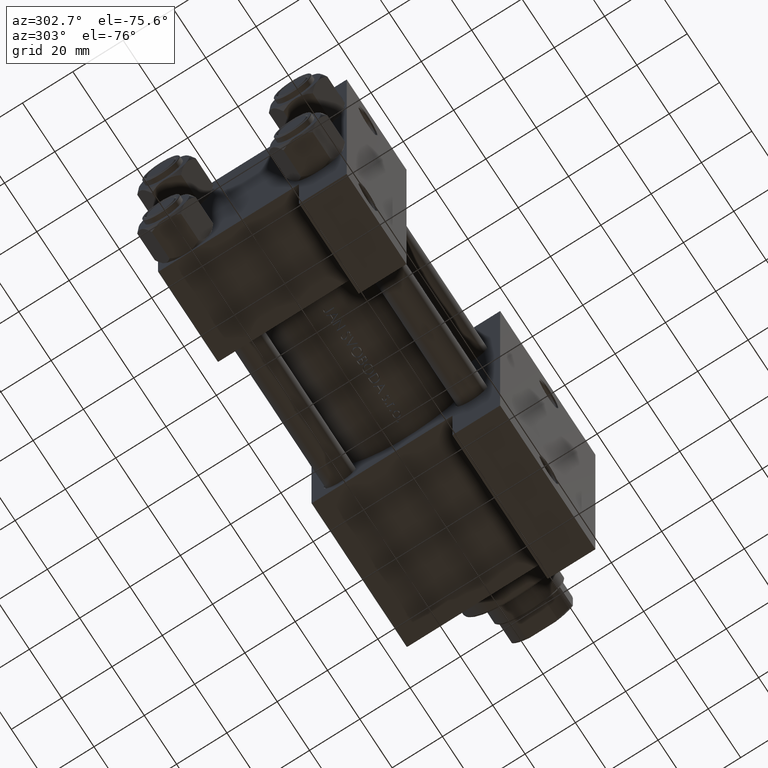
[diagram: clean part render]
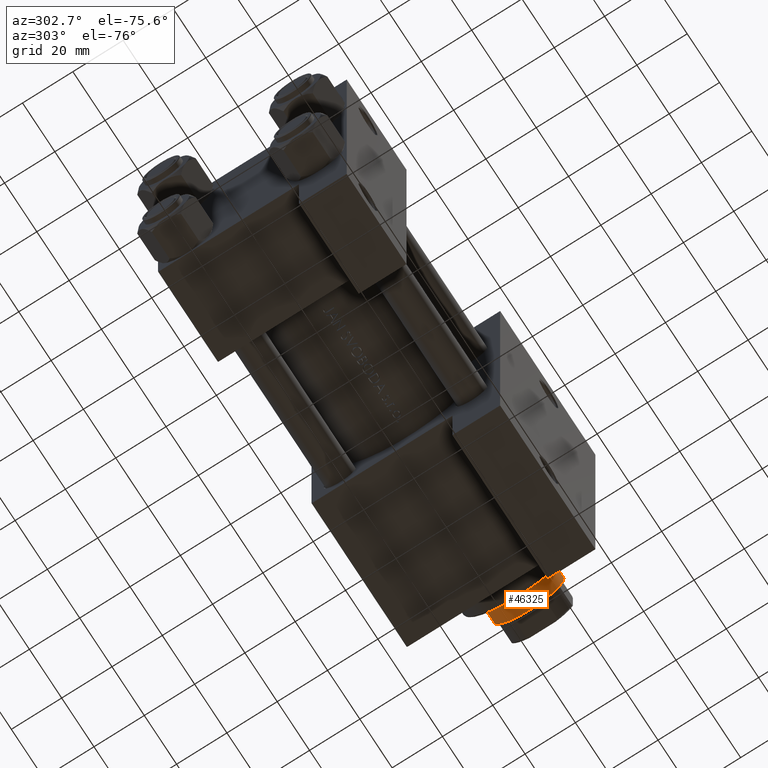
[diagram: same view with one face highlighted and labeled with its STEP entity id]
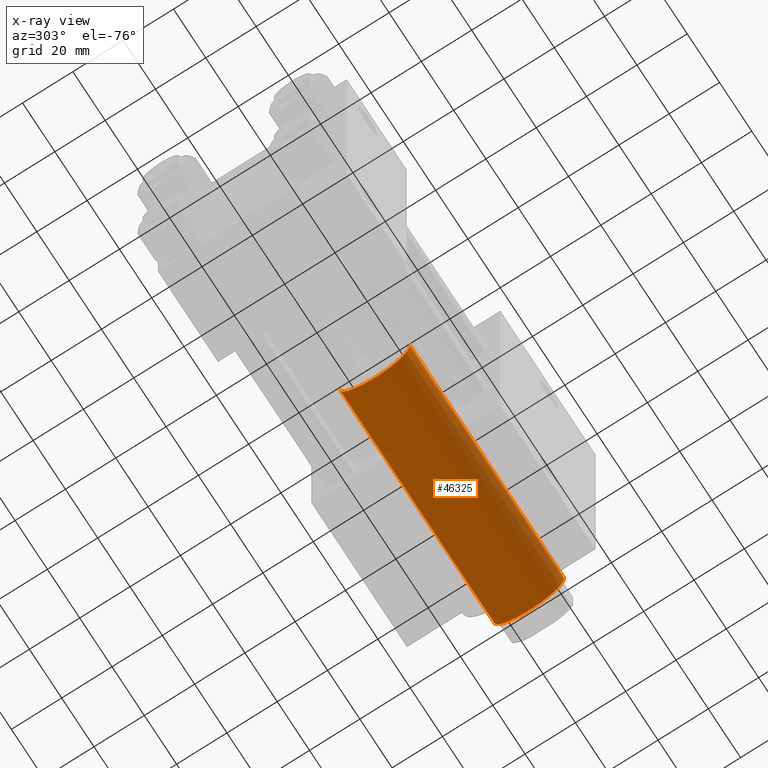
[diagram: x-ray of the same camera — body ghosted, the highlighted face saturated]
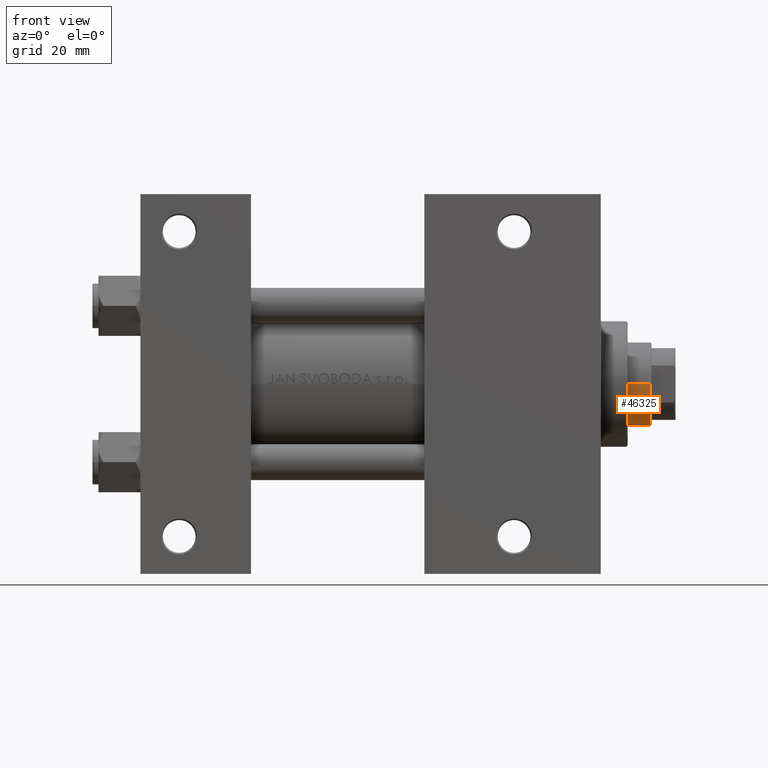
[diagram: same view with one face highlighted and labeled with its STEP entity id]
A machine part, auxiliary view. The second image highlights one B-rep face of the part: STEP entity #46325.
The next image is the same camera in x-ray: the body ghosted, the highlighted face saturated — about 31% of this face is hidden behind the body in this view.
A second angle (front view) of the same face is appended — the face is thin or edge-on in the first view.
In plain terms, the highlighted cylindrical surface (partial cylindrical patch) has radius 14 mm, axis along (-1, 0, 0).
Its self-contained STEP definition (entity closure, byte-faithful):
#1149 = EDGE_CURVE ( 'NONE', #24104, #16198, #5387, .T. ) ;
#3743 = CARTESIAN_POINT ( 'NONE',  ( 0.000000000000000000, 0.000000000000000000, 38.00000000000000000 ) ) ;
#4014 = CIRCLE ( 'NONE', #43197, 14.00000000000000178 ) ;
#4672 = LINE ( 'NONE', #29968, #31684 ) ;
#5004 = ORIENTED_EDGE ( 'NONE', *, *, #14249, .F. ) ;
#5387 = LINE ( 'NONE', #15749, #37346 ) ;
#5635 = ORIENTED_EDGE ( 'NONE', *, *, #1149, .T. ) ;
#6709 = VERTEX_POINT ( 'NONE', #28416 ) ;
#12194 = CARTESIAN_POINT ( 'NONE',  ( 0.000000000000000000, 0.000000000000000000, 134.0000000000000000 ) ) ;
#13692 = CARTESIAN_POINT ( 'NONE',  ( 14.00000000000000178, 1.714505518806294835E-15, 38.00000000000000000 ) ) ;
#14249 = EDGE_CURVE ( 'NONE', #18558, #6709, #4672, .T. ) ;
#14955 = AXIS2_PLACEMENT_3D ( 'NONE', #12194, #26870, #23720 ) ;
#15090 = AXIS2_PLACEMENT_3D ( 'NONE', #3743, #36728, #18417 ) ;
#15323 = EDGE_CURVE ( 'NONE', #16198, #6709, #45822, .T. ) ;
#15749 = CARTESIAN_POINT ( 'NONE',  ( 14.00000000000000178, 1.714505518806294835E-15, 134.0000000000000000 ) ) ;
#16198 = VERTEX_POINT ( 'NONE', #13692 ) ;
#17207 = CARTESIAN_POINT ( 'NONE',  ( -14.00000000000000178, 0.000000000000000000, 133.5000000000000284 ) ) ;
#18417 = DIRECTION ( 'NONE',  ( 1.000000000000000000, 0.000000000000000000, 0.000000000000000000 ) ) ;
#18558 = VERTEX_POINT ( 'NONE', #17207 ) ;
#18637 = DIRECTION ( 'NONE',  ( -0.000000000000000000, -0.000000000000000000, -1.000000000000000000 ) ) ;
#19110 = DIRECTION ( 'NONE',  ( -0.000000000000000000, -0.000000000000000000, -1.000000000000000000 ) ) ;
#20943 = CARTESIAN_POINT ( 'NONE',  ( 14.00000000000000178, 1.714505518806294835E-15, 133.5000000000000284 ) ) ;
#23720 = DIRECTION ( 'NONE',  ( -1.000000000000000000, 0.000000000000000000, 0.000000000000000000 ) ) ;
#24104 = VERTEX_POINT ( 'NONE', #20943 ) ;
#26870 = DIRECTION ( 'NONE',  ( -0.000000000000000000, -0.000000000000000000, -1.000000000000000000 ) ) ;
#28416 = CARTESIAN_POINT ( 'NONE',  ( -14.00000000000000178, 0.000000000000000000, 38.00000000000000000 ) ) ;
#29968 = CARTESIAN_POINT ( 'NONE',  ( -14.00000000000000178, 0.000000000000000000, 134.0000000000000000 ) ) ;
#30545 = EDGE_LOOP ( 'NONE', ( #43075, #5635, #34647, #5004 ) ) ;
#30688 = CARTESIAN_POINT ( 'NONE',  ( 0.000000000000000000, 0.000000000000000000, 133.5000000000000284 ) ) ;
#31684 = VECTOR ( 'NONE', #18637, 1000.000000000000000 ) ;
#33760 = EDGE_CURVE ( 'NONE', #18558, #24104, #4014, .T. ) ;
#33867 = CYLINDRICAL_SURFACE ( 'NONE', #14955, 14.00000000000000178 ) ;
#34647 = ORIENTED_EDGE ( 'NONE', *, *, #15323, .T. ) ;
#36728 = DIRECTION ( 'NONE',  ( 0.000000000000000000, 0.000000000000000000, 1.000000000000000000 ) ) ;
#37346 = VECTOR ( 'NONE', #19110, 1000.000000000000000 ) ;
#41276 = DIRECTION ( 'NONE',  ( 1.000000000000000000, 0.000000000000000000, 0.000000000000000000 ) ) ;
#43075 = ORIENTED_EDGE ( 'NONE', *, *, #33760, .T. ) ;
#43197 = AXIS2_PLACEMENT_3D ( 'NONE', #30688, #45344, #41276 ) ;
#45133 = FACE_OUTER_BOUND ( 'NONE', #30545, .T. ) ;
#45344 = DIRECTION ( 'NONE',  ( 0.000000000000000000, 0.000000000000000000, -1.000000000000000000 ) ) ;
#45822 = CIRCLE ( 'NONE', #15090, 14.00000000000000178 ) ;
#46325 = ADVANCED_FACE ( 'NONE', ( #45133 ), #33867, .T. ) ;